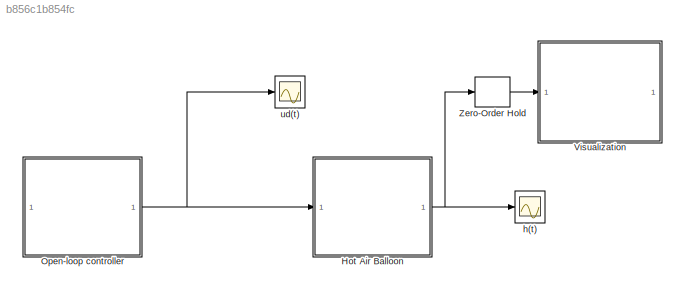
MODEL slx_b856c1b854fc
KIND model
CONFIG AbsTol = auto
CONFIG EnableMultiTasking = off
CONFIG FixedStep = 0.01
CONFIG MaxStep = auto
CONFIG MinStep = auto
CONFIG RelTol = 1e-3
CONFIG SampleTimeConstraint = Unconstrained
CONFIG SolverName = ode3
CONFIG StartTime = 0.0
CONFIG StopTime = 600
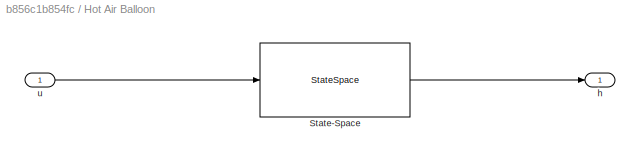
BLOCK [SubSystem] Hot Air Balloon
BLOCK [StateSpace] Hot Air Balloon/State-Space
  A = A
  B = B
  C = C
  D = 0
  InitialCondition = [0;0;0]
BLOCK [Outport] Hot Air Balloon/h
  NameLocation = top
BLOCK [Inport] Hot Air Balloon/u
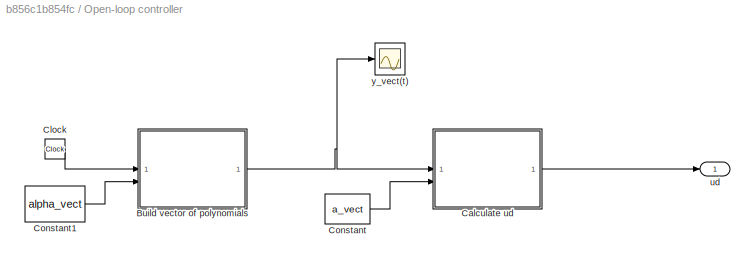
BLOCK [SubSystem] Open-loop controller
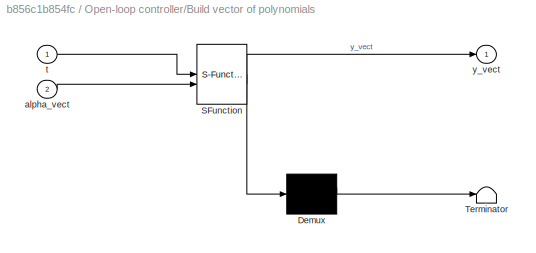
BLOCK [SubSystem] Open-loop controller/Build vector of polynomials
  ErrorFcn = Stateflow.Translate.translate
  PermitHierarchicalResolution = ExplicitOnly
  SFBlockType = MATLAB Function
  TreatAsAtomicUnit = on
BLOCK [Demux] Open-loop controller/Build vector of polynomials/ Demux 
  Outputs = 1
BLOCK [S-Function] Open-loop controller/Build vector of polynomials/ SFunction 
  EnableBusSupport = on
  FunctionName = sf_sfun
  PortCounts = [2 2]
  SFcnIsStateOwnerBlock = off
  SFunctionDeploymentMode = off
  Tag = Stateflow S-Function 1
BLOCK [Terminator] Open-loop controller/Build vector of polynomials/ Terminator 
BLOCK [Inport] Open-loop controller/Build vector of polynomials/alpha_vect
  Port = 2
BLOCK [Inport] Open-loop controller/Build vector of polynomials/t
BLOCK [Outport] Open-loop controller/Build vector of polynomials/y_vect
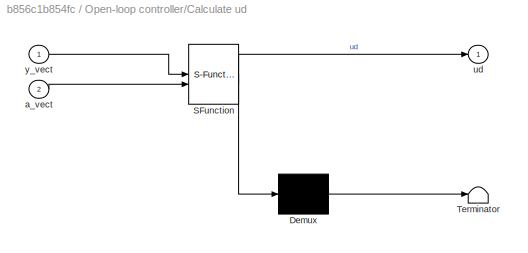
BLOCK [SubSystem] Open-loop controller/Calculate ud
  ErrorFcn = Stateflow.Translate.translate
  PermitHierarchicalResolution = ExplicitOnly
  SFBlockType = MATLAB Function
  TreatAsAtomicUnit = on
BLOCK [Demux] Open-loop controller/Calculate ud/ Demux 
  Outputs = 1
BLOCK [S-Function] Open-loop controller/Calculate ud/ SFunction 
  EnableBusSupport = on
  FunctionName = sf_sfun
  PortCounts = [2 2]
  SFcnIsStateOwnerBlock = off
  SFunctionDeploymentMode = off
  Tag = Stateflow S-Function 2
BLOCK [Terminator] Open-loop controller/Calculate ud/ Terminator 
BLOCK [Inport] Open-loop controller/Calculate ud/a_vect
  Port = 2
BLOCK [Outport] Open-loop controller/Calculate ud/ud
BLOCK [Inport] Open-loop controller/Calculate ud/y_vect
BLOCK [Clock] Open-loop controller/Clock
BLOCK [Constant] Open-loop controller/Constant
  Value = a_vect
  VectorParams1D = off
BLOCK [Constant] Open-loop controller/Constant1
  Value = alpha_vect
  VectorParams1D = off
BLOCK [Outport] Open-loop controller/ud
BLOCK [Scope] Open-loop controller/y_vect(t)
  Floating = off
  NumInputPorts = 1
  ScopeSpecificationString = Simulink.scopes.TimeScopeBlockCfg('CurrentConfiguration', extmgr.ConfigurationSet(extmgr.Configuration('Core','General UI',true),extmgr.Configuration('Core','Source UI',true),extmgr.Configuration('Sources','WiredSimulink',true,'DataLoggingVariableName','ScopeData5'),extmgr.Configuration('Visuals','Time Domain',true,'SerializedDisplays',{struct('MinYLimReal','-18.99518','MaxYLimReal','113.22169','Y...<+1494ch>
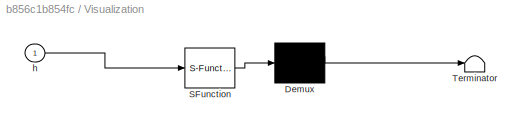
BLOCK [SubSystem] Visualization
  ErrorFcn = Stateflow.Translate.translate
  PermitHierarchicalResolution = ExplicitOnly
  SFBlockType = MATLAB Function
  TreatAsAtomicUnit = on
BLOCK [Demux] Visualization/ Demux 
  Outputs = 1
BLOCK [S-Function] Visualization/ SFunction 
  EnableBusSupport = on
  FunctionName = sf_sfun
  PortCounts = [1 1]
  SFcnIsStateOwnerBlock = off
  SFunctionDeploymentMode = off
  Tag = Stateflow S-Function 3
BLOCK [Terminator] Visualization/ Terminator 
BLOCK [Inport] Visualization/h
BLOCK [ZeroOrderHold] Zero-Order Hold
  SampleTime = 2
BLOCK [Scope] h(t)
  Floating = off
  NumInputPorts = 1
  ScopeSpecificationString = Simulink.scopes.TimeScopeBlockCfg('CurrentConfiguration', extmgr.ConfigurationSet(extmgr.Configuration('Core','General UI',true),extmgr.Configuration('Core','Source UI',true),extmgr.Configuration('Sources','WiredSimulink',true),extmgr.Configuration('Visuals','Time Domain',true,'SerializedDisplays',{struct('MinYLimReal','-0.0039','MaxYLimReal','0.03512','YLabelReal','','MinYLimMag','0.00000','MaxYL...<+1362ch>
BLOCK [Scope] ud(t)
  Floating = off
  NumInputPorts = 1
  ScopeSpecificationString = Simulink.scopes.TimeScopeBlockCfg('CurrentConfiguration', extmgr.ConfigurationSet(extmgr.Configuration('Core','General UI',true),extmgr.Configuration('Core','Source UI',true),extmgr.Configuration('Sources','WiredSimulink',true,'DataLoggingVariableName','ScopeData2'),extmgr.Configuration('Visuals','Time Domain',true,'SerializedDisplays',{struct('MinYLimReal','-0.01957','MaxYLimReal','0.17581','YLab...<+1409ch>
LINE Hot Air Balloon/State-Space:1 -> Hot Air Balloon/h:1
LINE Hot Air Balloon/u:1 -> Hot Air Balloon/State-Space:1
NET Hot Air Balloon:1 -> Zero-Order Hold:1, h(t):1
NET Open-loop controller/Build vector of polynomials:1 -> Open-loop controller/Calculate ud:1, Open-loop controller/y_vect(t):1
LINE Open-loop controller/Calculate ud:1 -> Open-loop controller/ud:1
LINE Open-loop controller/Clock:1 -> Open-loop controller/Build vector of polynomials:1
LINE Open-loop controller/Constant1:1 -> Open-loop controller/Build vector of polynomials:2
LINE Open-loop controller/Constant:1 -> Open-loop controller/Calculate ud:2
NET Open-loop controller:1 -> Hot Air Balloon:1, ud(t):1
LINE Zero-Order Hold:1 -> Visualization:1
note: NET lines group one-source signal fan-out (src -> all destinations, sorted); 1:1 wires keep LINE
CHART Open-loop controller/Build vector of polynomials states=1 transitions=1
  STATE_LABEL 'eML_blk_kernel()'
  STATE_LABEL "SCRIPT:\nfunction y_vect = fcn(t,alpha_vect)\n\n\nt_vect0 = [ 1 ; t ; t^2 ; t^3 ; t^4 ; t^5 ]; % vector of t values\nt_vect1 = [ 0 ; 1 ; 2*t ; 3*t^2 ; 4*t^3 ; 5*t^4 ]; % derivative of t_vect0\nt_vect2 = [ 0 ; 0 ; 2 ; 2*3*t ; 3*4*t^2 ; 4*5*t^3 ]; % derivative of t_vect1\nt_vect3 = [ 0 ; 0 ; 0 ; 2*3 ; 2*3*4*t ; 3*4*5*t^2 ]; % derivative of t_vect2\n\n\n\nyd = t_vect0'*alpha_vect;\nyd_dot = t_vect1'*alpha_vect;\n...<+108ch>"
CHART Open-loop controller/Calculate ud states=1 transitions=1
  STATE_LABEL 'eML_blk_kernel()'
  STATE_LABEL "SCRIPT:\nfunction ud = fcn(y_vect,a_vect)\n\nae_vect = [ a_vect ; 1 ];\n\n\n% computation open-loop input\nud = ae_vect' * y_vect;\n\n"
CHART Visualization states=1 transitions=1
  STATE_LABEL 'eML_blk_kernel()'
  STATE_LABEL 'SCRIPT:\nfunction fcn(h)\n\nsf = 2.5; % scale factor\n% balloon\n    Xballoon = sf*[ 0 ; 0.6 ; 2.2 ; 3 ; 3 ; 2.2 ; 1.2 ; 0 ; -1.2 ; -2.2 ; -3 ; -3 ; -2.2 ; -0.6 ];\n    Yballoon = sf*[ 1.2; 2; 3 ; 4 ; 5 ; 6; 6.4 ; 6.6 ; 6.4 ; 6 ; 5 ; 4 ; 3 ; 2 ]; \n\n% basket\n    Xbasket = sf*[ 0.6 ; 0.6 ; -0.6 ; -0.6 ];\n    Ybasket = sf*[ 0 ; 0.7 ; 0.7 ; 0 ];\n    \n% cables\n    Xcable1 = sf*[ 0.6 ; 0.6 ];\n    Ycable1 = sf...<+1154ch>'
CHART  states=0 transitions=0
CHART  states=0 transitions=0
CHART  states=0 transitions=0
